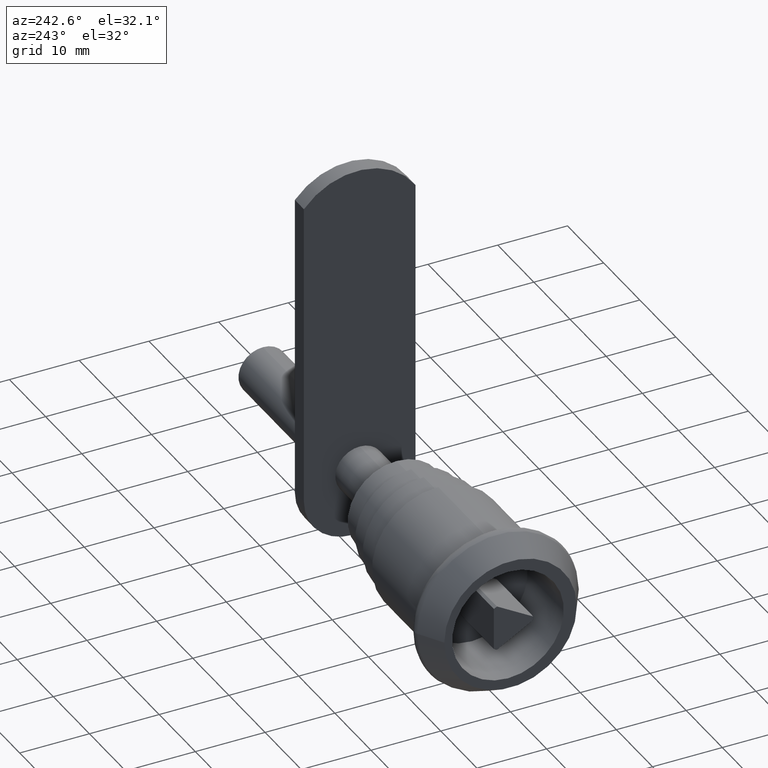
[diagram: clean part render]
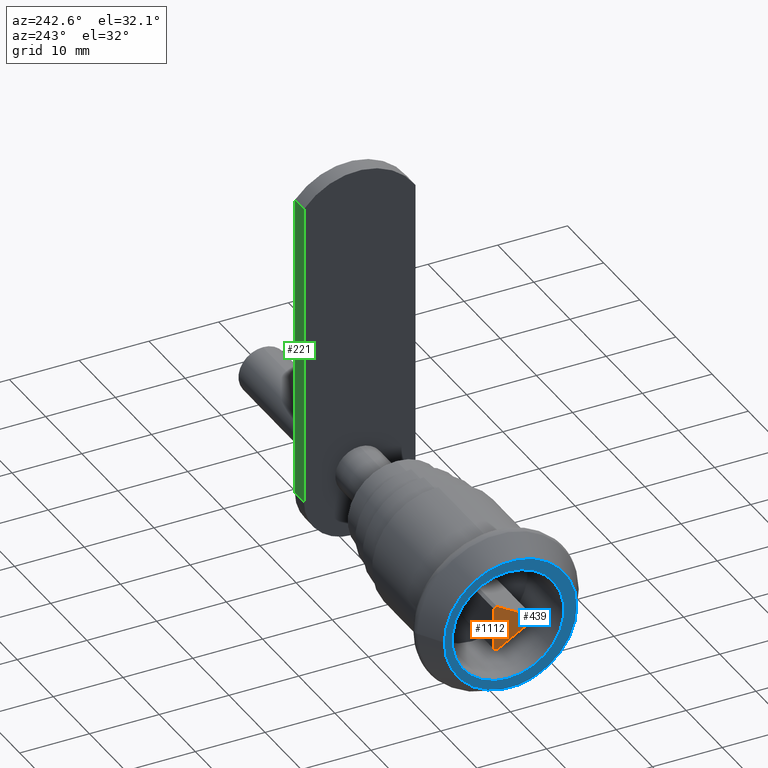
[diagram: same view with three faces highlighted in distinct colors, each labeled with its STEP entity id]
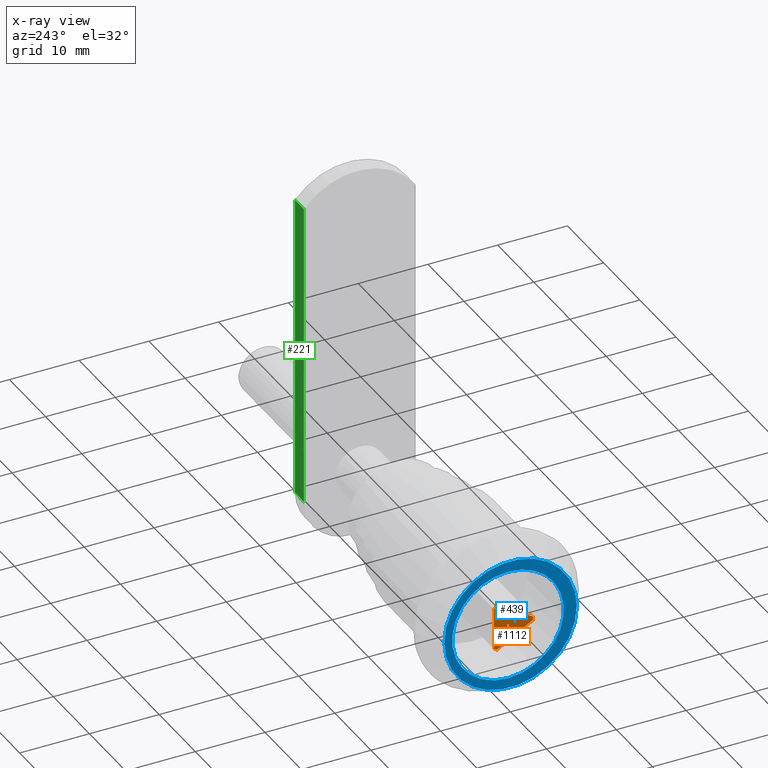
[diagram: x-ray of the same camera — body ghosted, the three highlighted faces saturated]
A machine part, auxiliary view with three faces highlighted in distinct colors.
The next image is the same camera in x-ray (body ghosted, the three faces saturated) — at least one of them is partly hidden behind the body in this view.
Their STEP definitions:

[orange] entity #1112 — the highlighted planar face has unit normal (-1, 0, 0).
#960=CARTESIAN_POINT('',(0.0,-3.247419694617747,0.249999999999091));
#961=VERTEX_POINT('',#960);
#969=CARTESIAN_POINT('',(0.0,1.948732728068535,3.249999999987089));
#970=VERTEX_POINT('',#969);
#977=CARTESIAN_POINT('',(0.0,-3.247419694617747,0.249999999999091));
#978=DIRECTION('',(0.0,0.866025403784457,0.499999999999968));
#979=VECTOR('',#978,5.999999999976375);
#980=LINE('',#977,#979);
#981=EDGE_CURVE('',#961,#970,#980,.T.);
#993=CARTESIAN_POINT('',(0.0,2.381745429957846,2.999999999988177));
#994=VERTEX_POINT('',#993);
#1001=CARTESIAN_POINT('',(0.0,1.948732728068535,3.249999999987089));
#1002=DIRECTION('',(0.0,0.866025403783926,-0.500000000000888));
#1003=VECTOR('',#1002,0.499999999996937);
#1004=LINE('',#1001,#1003);
#1005=EDGE_CURVE('',#970,#994,#1004,.T.);
#1017=CARTESIAN_POINT('',(0.0,2.381745429957846,-2.999999999988177));
#1018=VERTEX_POINT('',#1017);
#1025=CARTESIAN_POINT('',(0.0,2.381745429957846,2.999999999988177));
#1026=DIRECTION('',(0.0,0.0,-1.0));
#1027=VECTOR('',#1026,5.999999999976353);
#1028=LINE('',#1025,#1027);
#1029=EDGE_CURVE('',#994,#1018,#1028,.T.);
#1041=CARTESIAN_POINT('',(0.0,1.948732728067625,-3.249999999986812));
#1042=VERTEX_POINT('',#1041);
#1049=CARTESIAN_POINT('',(0.0,2.381745429957846,-2.999999999988177));
#1050=DIRECTION('',(0.0,-0.866025403784621,-0.499999999999685));
#1051=VECTOR('',#1050,0.499999999997587);
#1052=LINE('',#1049,#1051);
#1053=EDGE_CURVE('',#1018,#1042,#1052,.T.);
#1065=CARTESIAN_POINT('',(0.0,-3.247419694618657,-0.249999999998810));
#1066=VERTEX_POINT('',#1065);
#1073=CARTESIAN_POINT('',(0.0,1.948732728067625,-3.249999999986812));
#1074=DIRECTION('',(0.0,-0.866025403784457,0.499999999999969));
#1075=VECTOR('',#1074,5.999999999976378);
#1076=LINE('',#1073,#1075);
#1077=EDGE_CURVE('',#1042,#1066,#1076,.T.);
#1087=CARTESIAN_POINT('',(0.0,-3.247419694618657,-0.249999999998810));
#1088=DIRECTION('',(0.0,0.0,1.0));
#1089=VECTOR('',#1088,0.499999999997900);
#1090=LINE('',#1087,#1089);
#1091=EDGE_CURVE('',#1066,#961,#1090,.T.);
#1099=CARTESIAN_POINT('',(0.0,-3.810340931498104,-3.900004724406000));
#1100=DIRECTION('',(-1.0,0.0,0.0));
#1101=DIRECTION('',(0.0,0.0,1.0));
#1102=AXIS2_PLACEMENT_3D('',#1099,#1100,#1101);
#1103=PLANE('',#1102);
#1104=ORIENTED_EDGE('',*,*,#981,.T.);
#1105=ORIENTED_EDGE('',*,*,#1005,.T.);
#1106=ORIENTED_EDGE('',*,*,#1029,.T.);
#1107=ORIENTED_EDGE('',*,*,#1053,.T.);
#1108=ORIENTED_EDGE('',*,*,#1077,.T.);
#1109=ORIENTED_EDGE('',*,*,#1091,.T.);
#1110=EDGE_LOOP('',(#1104,#1105,#1106,#1107,#1108,#1109));
#1111=FACE_OUTER_BOUND('',#1110,.T.);
#1112=ADVANCED_FACE('',(#1111),#1103,.T.);

[blue] entity #439 — the highlighted planar face has unit normal (1, 0, 0).
#380=CARTESIAN_POINT('',(0.0,9.499999999961801,0.0));
#381=VERTEX_POINT('',#380);
#388=CARTESIAN_POINT('',(0.0,-9.499999999961801,0.0));
#389=VERTEX_POINT('',#388);
#390=CARTESIAN_POINT('',(0.0,0.0,0.0));
#391=DIRECTION('',(1.0,0.0,0.0));
#392=DIRECTION('',(0.0,1.0,0.0));
#393=AXIS2_PLACEMENT_3D('',#390,#391,#392);
#394=CIRCLE('',#393,9.499999999961801);
#395=EDGE_CURVE('',#381,#389,#394,.T.);
#397=CARTESIAN_POINT('',(0.0,0.0,0.0));
#398=DIRECTION('',(1.0,0.0,0.0));
#399=DIRECTION('',(0.0,1.0,0.0));
#400=AXIS2_PLACEMENT_3D('',#397,#398,#399);
#401=CIRCLE('',#400,9.499999999961801);
#402=EDGE_CURVE('',#389,#381,#401,.T.);
#410=CARTESIAN_POINT('',(0.0,18.999999999923602,-18.999999999923602));
#411=DIRECTION('',(1.0,0.0,0.0));
#412=DIRECTION('',(0.0,0.0,1.0));
#413=AXIS2_PLACEMENT_3D('',#410,#411,#412);
#414=PLANE('',#413);
#415=ORIENTED_EDGE('',*,*,#402,.F.);
#416=ORIENTED_EDGE('',*,*,#395,.F.);
#417=EDGE_LOOP('',(#415,#416));
#418=FACE_OUTER_BOUND('',#417,.T.);
#419=CARTESIAN_POINT('',(0.0,0.361019487802878,-7.999999999968002));
#420=VERTEX_POINT('',#419);
#421=CARTESIAN_POINT('',(0.0,0.361019487802878,7.999999999968002));
#422=VERTEX_POINT('',#421);
#423=CARTESIAN_POINT('',(0.0,0.361019487802878,0.0));
#424=DIRECTION('',(-1.0,0.0,0.0));
#425=DIRECTION('',(0.0,0.0,1.0));
#426=AXIS2_PLACEMENT_3D('',#423,#424,#425);
#427=CIRCLE('',#426,7.999999999968002);
#428=EDGE_CURVE('',#420,#422,#427,.T.);
#429=ORIENTED_EDGE('',*,*,#428,.F.);
#430=CARTESIAN_POINT('',(0.0,0.361019487802878,0.0));
#431=DIRECTION('',(-1.0,0.0,0.0));
#432=DIRECTION('',(0.0,0.0,1.0));
#433=AXIS2_PLACEMENT_3D('',#430,#431,#432);
#434=CIRCLE('',#433,7.999999999968002);
#435=EDGE_CURVE('',#422,#420,#434,.T.);
#436=ORIENTED_EDGE('',*,*,#435,.F.);
#437=EDGE_LOOP('',(#429,#436));
#438=FACE_BOUND('',#437,.T.);
#439=ADVANCED_FACE('',(#418,#438),#414,.F.);

[green] entity #221 — the highlighted planar face has unit normal (0, 1, 0).
#7=CARTESIAN_POINT('',(41.717976448594527,7.999999999968168,41.453369409242946));
#8=VERTEX_POINT('',#7);
#26=CARTESIAN_POINT('',(44.217976448584523,7.999999999968168,41.453369409242946));
#27=VERTEX_POINT('',#26);
#35=CARTESIAN_POINT('',(41.717976448594527,7.999999999968168,41.453369409242946));
#36=DIRECTION('',(1.0,0.0,0.0));
#37=VECTOR('',#36,2.499999999989996);
#38=LINE('',#35,#37);
#39=EDGE_CURVE('',#8,#27,#38,.T.);
#49=CARTESIAN_POINT('',(41.717976448594527,7.999999999968168,-2.499999999962002));
#50=VERTEX_POINT('',#49);
#51=CARTESIAN_POINT('',(41.717976448594527,7.999999999968168,41.453369409242946));
#52=DIRECTION('',(0.0,0.0,-1.0));
#53=VECTOR('',#52,43.953369409204946);
#54=LINE('',#51,#53);
#55=EDGE_CURVE('',#8,#50,#54,.T.);
#146=CARTESIAN_POINT('',(44.217976448584523,7.999999999968168,-2.499999999962002));
#147=VERTEX_POINT('',#146);
#155=CARTESIAN_POINT('',(44.217976448584523,7.999999999968168,41.453369409242946));
#156=DIRECTION('',(0.0,0.0,-1.0));
#157=VECTOR('',#156,43.953369409204946);
#158=LINE('',#155,#157);
#159=EDGE_CURVE('',#27,#147,#158,.T.);
#170=CARTESIAN_POINT('',(41.717976448594527,7.999999999968168,-2.499999999962002));
#171=DIRECTION('',(1.0,0.0,0.0));
#172=VECTOR('',#171,2.499999999989996);
#173=LINE('',#170,#172);
#174=EDGE_CURVE('',#50,#147,#173,.T.);
#210=CARTESIAN_POINT('',(44.218015818663844,7.999999999968168,-9.500039370041323));
#211=DIRECTION('',(0.0,1.0,0.0));
#212=DIRECTION('',(-1.0,0.0,0.0));
#213=AXIS2_PLACEMENT_3D('',#210,#211,#212);
#214=PLANE('',#213);
#215=ORIENTED_EDGE('',*,*,#39,.T.);
#216=ORIENTED_EDGE('',*,*,#159,.T.);
#217=ORIENTED_EDGE('',*,*,#174,.F.);
#218=ORIENTED_EDGE('',*,*,#55,.F.);
#219=EDGE_LOOP('',(#215,#216,#217,#218));
#220=FACE_OUTER_BOUND('',#219,.T.);
#221=ADVANCED_FACE('',(#220),#214,.T.);